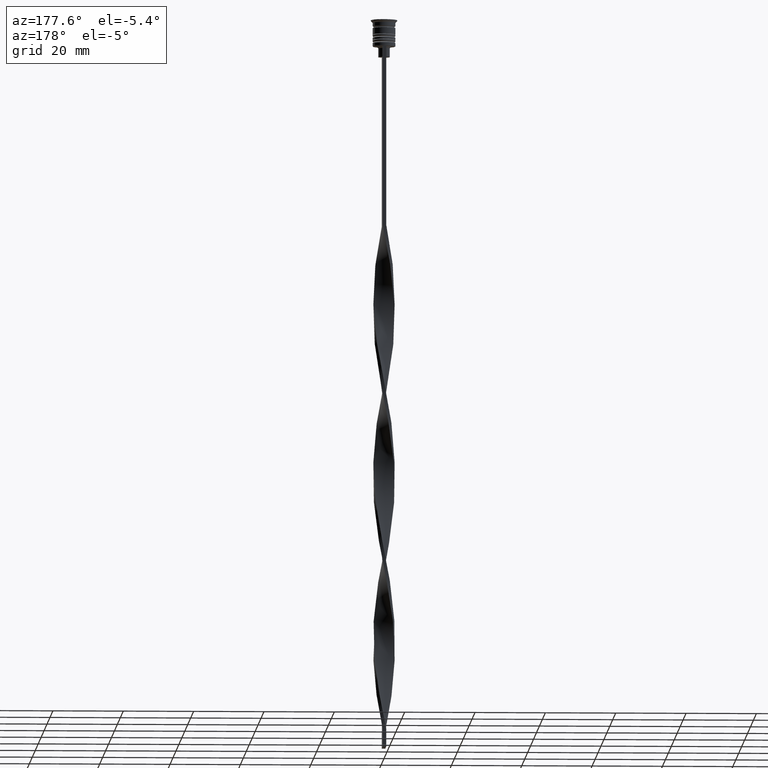
[diagram: clean part render]
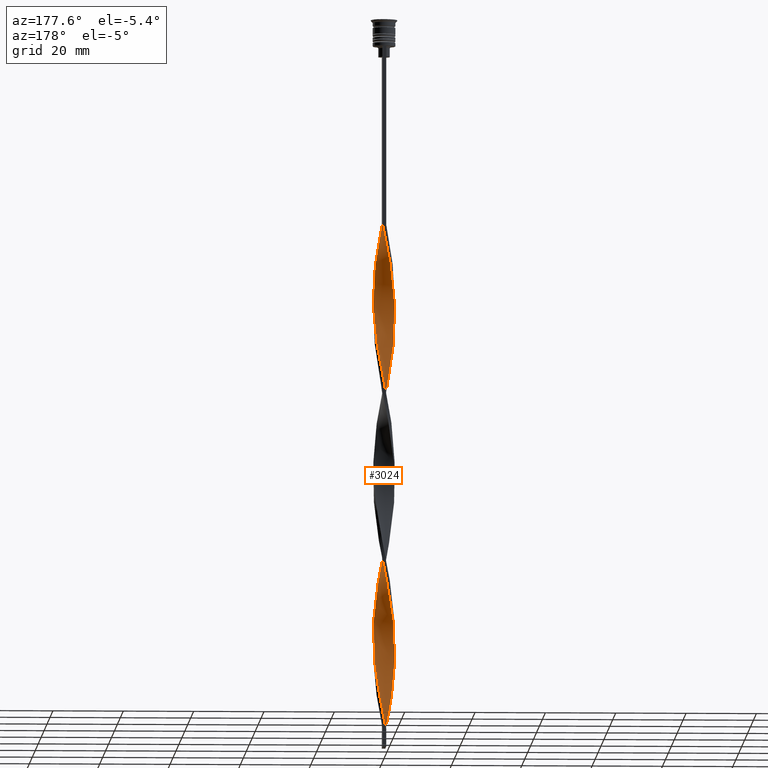
[diagram: same view with one face highlighted and labeled with its STEP entity id]
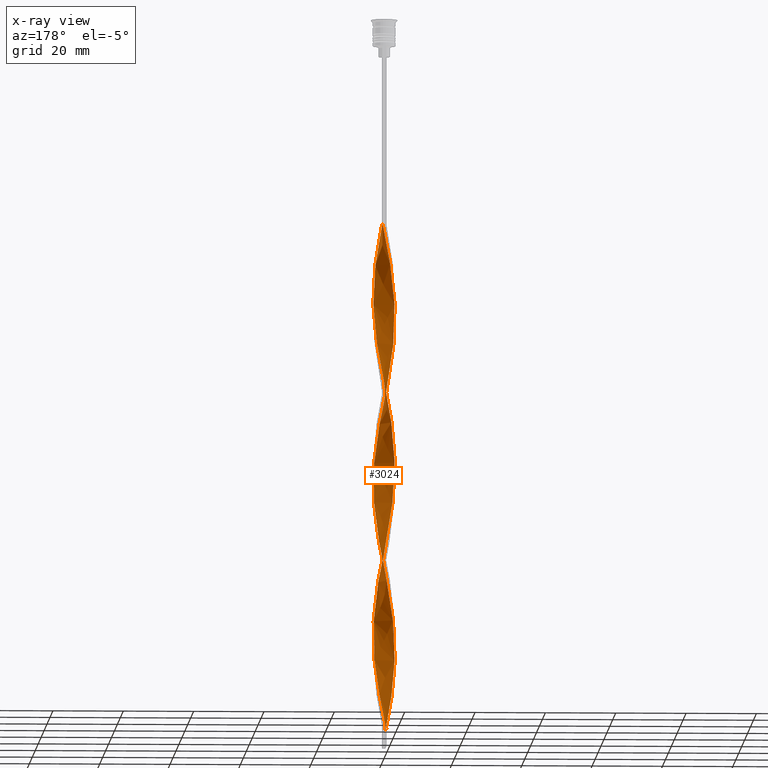
[diagram: x-ray of the same camera — body ghosted, the highlighted face saturated]
A machine part, auxiliary view. The second image highlights one B-rep face of the part: STEP entity #3024.
The next image is the same camera in x-ray: the body ghosted, the highlighted face saturated — about 0% of this face is hidden behind the body in this view.
In plain terms, the highlighted face is a freeform B-spline surface patch.
Its self-contained STEP definition (entity closure, byte-faithful):
#1 = CARTESIAN_POINT ( 'NONE',  ( -0.05976200360776023901, 3.040794057959990582, -157.3235294117646959 ) ) ;
#2 = CARTESIAN_POINT ( 'NONE',  ( 1.307479267857234451, -2.760420903407855509, -158.7352941176470438 ) ) ;
#4 = CARTESIAN_POINT ( 'NONE',  ( -3.022308424554498885, 0.3400761486298399805, -126.2647058823529420 ) ) ;
#11 = CARTESIAN_POINT ( 'NONE',  ( 2.908359051953456120, 0.8896334216520844773, -137.5588235294117680 ) ) ;
#16 = CARTESIAN_POINT ( 'NONE',  ( -2.628006467404950364, 1.556601299988307430, -172.8529411764705799 ) ) ;
#20 = CARTESIAN_POINT ( 'NONE',  ( -1.888233802353293855, -2.400832919529793941, -141.7941176470587834 ) ) ;
#36 = CARTESIAN_POINT ( 'NONE',  ( -2.628006467404950364, 1.556601299988307430, -76.85294117647060830 ) ) ;
#42 = CARTESIAN_POINT ( 'NONE',  ( -2.564815624776293213, -1.658658015008195319, -189.7941176470588118 ) ) ;
#43 = CARTESIAN_POINT ( 'NONE',  ( -1.042735103291661192, 2.857044540143419908, -109.3235294117646959 ) ) ;
#54 = CARTESIAN_POINT ( 'NONE',  ( -0.3415330684894309909, 3.035256292798965916, -158.7352941176470154 ) ) ;
#58 = CARTESIAN_POINT ( 'NONE',  ( -2.908359051953456120, -0.8896334216520835891, -185.5588235294117396 ) ) ;
#61 = CARTESIAN_POINT ( 'NONE',  ( 2.564815624776293213, -1.658658015008195319, -167.2058823529411882 ) ) ;
#72 = CARTESIAN_POINT ( 'NONE',  ( -2.908359051953456120, -0.8896334216520835891, -89.55882352941175384 ) ) ;
#76 = CARTESIAN_POINT ( 'NONE',  ( -1.549961113263636614, -2.616795855119490533, -196.8529411764705515 ) ) ;
#95 = CARTESIAN_POINT ( 'NONE',  ( -0.7779909387260893761, 2.953668176878985641, -107.9117647058823621 ) ) ;
#114 = CARTESIAN_POINT ( 'NONE',  ( 2.004405056496874504, -2.287435325750164505, -66.97058823529411598 ) ) ;
#130 = CARTESIAN_POINT ( 'NONE',  ( 2.825922375284400712, -1.159132575987104063, -74.02941176470586981 ) ) ;
#135 = CARTESIAN_POINT ( 'NONE',  ( 1.888233802353294966, 2.400832919529793497, -189.7941176470588118 ) ) ;
#149 = CARTESIAN_POINT ( 'NONE',  ( -1.651582472329342188, 2.553874573485256150, -165.7941176470588118 ) ) ;
#156 = CARTESIAN_POINT ( 'NONE',  ( 0.05976200360776034309, 3.040794057959990582, -199.6764705882352757 ) ) ;
#211 = CARTESIAN_POINT ( 'NONE',  ( 2.990795728622512417, -0.6201342673170637809, -76.85294117647059409 ) ) ;
#213 = CARTESIAN_POINT ( 'NONE',  ( 1.888233802353294966, 2.400832919529793497, -93.79411764705881183 ) ) ;
#222 = CARTESIAN_POINT ( 'NONE',  ( -2.869284401559882625, 1.047202283617009400, -79.67647058823528994 ) ) ;
#229 = CARTESIAN_POINT ( 'NONE',  ( -1.307479267857234673, 2.760420903407855509, -110.7352941176470438 ) ) ;
#238 = CARTESIAN_POINT ( 'NONE',  ( -2.695369000030346740, -1.408895295497649247, -92.38235294117646390 ) ) ;
#244 = CARTESIAN_POINT ( 'NONE',  ( 2.004405056496874504, -2.287435325750164505, -162.9705882352940876 ) ) ;
#249 = CARTESIAN_POINT ( 'NONE',  ( -1.888233802353294966, 2.400832919529793497, -71.20588235294118817 ) ) ;
#260 = CARTESIAN_POINT ( 'NONE',  ( 2.748645434482416050, 1.301901791802658304, -182.7352941176470438 ) ) ;
#263 = CARTESIAN_POINT ( 'NONE',  ( -2.941068349153452832, -0.7746721665374217691, -131.9117647058823479 ) ) ;
#273 = CARTESIAN_POINT ( 'NONE',  ( -1.154187920767260289, 2.813867488627520785, -162.9705882352940876 ) ) ;
#276 = CARTESIAN_POINT ( 'NONE',  ( 1.307479267857235339, 2.760420903407855064, -150.2647058823528994 ) ) ;
#278 = CARTESIAN_POINT ( 'NONE',  ( -2.004405056496874504, 2.287435325750164061, -114.9705882352941018 ) ) ;
#280 = CARTESIAN_POINT ( 'NONE',  ( -3.053821120486486684, 0.06001802994261361962, -127.6764705882352615 ) ) ;
#288 = CARTESIAN_POINT ( 'NONE',  ( 3.022308424554498441, 0.3400761486298388703, -134.7352941176470722 ) ) ;
#292 = CARTESIAN_POINT ( 'NONE',  ( -1.651582472329342188, 2.553874573485256150, -165.7941176470588118 ) ) ;
#294 = CARTESIAN_POINT ( 'NONE',  ( -2.990795728622512417, 0.6201342673170635589, -124.8529411764705799 ) ) ;
#304 = CARTESIAN_POINT ( 'NONE',  ( -2.941068349153452388, 0.7746721665374231014, -81.08823529411763786 ) ) ;
#310 = CARTESIAN_POINT ( 'NONE',  ( -0.6174888838592811346, 2.978037521306644120, -160.1470588235293917 ) ) ;
#315 = CARTESIAN_POINT ( 'NONE',  ( -2.941068349153452832, -0.7746721665374217691, -131.9117647058823479 ) ) ;
#333 = CARTESIAN_POINT ( 'NONE',  ( 1.549961113263636836, 2.616795855119490533, -148.8529411764705799 ) ) ;
#338 = CARTESIAN_POINT ( 'NONE',  ( 1.888233802353294966, -2.400832919529793497, -119.2058823529411598 ) ) ;
#340 = CARTESIAN_POINT ( 'NONE',  ( -0.7779909387260893761, 2.953668176878985641, -107.9117647058823621 ) ) ;
#351 = CARTESIAN_POINT ( 'NONE',  ( -0.7779909387260889320, -2.953668176878986973, -105.0882352941176521 ) ) ;
#354 = CARTESIAN_POINT ( 'NONE',  ( 1.414931142305389411, -2.706916227440719691, -116.3823529411764781 ) ) ;
#367 = CARTESIAN_POINT ( 'NONE',  ( 1.154187920767260289, 2.813867488627520785, -98.02941176470588402 ) ) ;
#388 = CARTESIAN_POINT ( 'NONE',  ( -1.549961113263636614, -2.616795855119490533, -196.8529411764705515 ) ) ;
#404 = CARTESIAN_POINT ( 'NONE',  ( 2.390591389550001278, -1.880178929838698831, -69.79411764705881183 ) ) ;
#421 = CARTESIAN_POINT ( 'NONE',  ( 3.033336708616754862, 0.2210620097576110610, -81.08823529411763786 ) ) ;
#446 = DIRECTION ( 'NONE',  ( 0.000000000000000000, 1.000000000000000000, 0.000000000000000000 ) ) ;
#451 = CARTESIAN_POINT ( 'NONE',  ( 1.042735103291661858, -2.857044540143419908, -61.32352941176470296 ) ) ;
#457 = ORIENTED_EDGE ( 'NONE', *, *, #1975, .F. ) ;
#483 = CARTESIAN_POINT ( 'NONE',  ( 0.7779909387260891540, -2.953668176878985641, -59.91176470588236214 ) ) ;
#485 = CARTESIAN_POINT ( 'NONE',  ( 2.462620696176918145, 1.784796713007145597, -89.55882352941175384 ) ) ;
#497 = CARTESIAN_POINT ( 'NONE',  ( -2.390591389550001722, -1.880178929838698387, -95.20588235294117396 ) ) ;
#503 = CARTESIAN_POINT ( 'NONE',  ( 0.3415330684894316571, 3.035256292798965916, -198.2647058823529562 ) ) ;
#509 = CARTESIAN_POINT ( 'NONE',  ( 0.4999999999999998890, 3.000000000000000000, -58.50000000000000000 ) ) ;
#514 = CARTESIAN_POINT ( 'NONE',  ( -2.297234924948886370, 2.012992126025985318, -74.02941176470586981 ) ) ;
#516 = CARTESIAN_POINT ( 'NONE',  ( 2.825922375284400712, -1.159132575987103841, -74.02941176470586981 ) ) ;
#518 = CARTESIAN_POINT ( 'NONE',  ( 1.549961113263636614, -2.616795855119490533, -160.1470588235293917 ) ) ;
#523 = CARTESIAN_POINT ( 'NONE',  ( -1.154187920767260289, 2.813867488627520785, -66.97058823529411598 ) ) ;
#526 = CARTESIAN_POINT ( 'NONE',  ( -2.004405056496874504, -2.287435325750164505, -98.02941176470588402 ) ) ;
#528 = CARTESIAN_POINT ( 'NONE',  ( -3.053821120486486684, 0.06001802994261361268, -127.6764705882352757 ) ) ;
#532 = CARTESIAN_POINT ( 'NONE',  ( -1.549961113263637058, 2.616795855119490533, -112.1470588235294059 ) ) ;
#539 = CARTESIAN_POINT ( 'NONE',  ( 2.628006467404950364, -1.556601299988307430, -124.8529411764705799 ) ) ;
#548 = CARTESIAN_POINT ( 'NONE',  ( 0.8934446992291316114, 2.920818749814321880, -99.44117647058823195 ) ) ;
#550 = CARTESIAN_POINT ( 'NONE',  ( -2.695369000030346296, 1.408895295497650135, -120.6176470588235219 ) ) ;
#558 = CARTESIAN_POINT ( 'NONE',  ( -0.5000000000000002220, -3.000000000000000000, -106.4999999999999858 ) ) ;
#562 = CARTESIAN_POINT ( 'NONE',  ( -0.7779909387260889320, -2.953668176878986529, -201.0882352941176237 ) ) ;
#565 = CARTESIAN_POINT ( 'NONE',  ( -1.549961113263637058, 2.616795855119490533, -112.1470588235294059 ) ) ;
#568 = CARTESIAN_POINT ( 'NONE',  ( 2.628006467404950364, 1.556601299988306986, -184.1470588235293917 ) ) ;
#578 = CARTESIAN_POINT ( 'NONE',  ( 2.825922375284400712, 1.159132575987104063, -138.9705882352941160 ) ) ;
#583 = CARTESIAN_POINT ( 'NONE',  ( -3.033336708616754418, 0.2210620097576115606, -179.9117647058823195 ) ) ;
#585 = CARTESIAN_POINT ( 'NONE',  ( 3.033336708616754862, 0.2210620097576110610, -177.0882352941176237 ) ) ;
#595 = CARTESIAN_POINT ( 'NONE',  ( 2.990795728622511529, 0.6201342673170625597, -136.1470588235294201 ) ) ;
#600 = CARTESIAN_POINT ( 'NONE',  ( -3.053821120486486240, -0.06001802994261491719, -181.3235294117646959 ) ) ;
#603 = CARTESIAN_POINT ( 'NONE',  ( 2.869284401559882625, 1.047202283617009400, -181.3235294117646959 ) ) ;
#620 = CARTESIAN_POINT ( 'NONE',  ( -3.022308424554498441, -0.3400761486298393144, -86.73529411764704378 ) ) ;
#625 = CARTESIAN_POINT ( 'NONE',  ( -1.792442958670039443, -2.473170806831126889, -195.4411764705882604 ) ) ;
#639 = CARTESIAN_POINT ( 'NONE',  ( -0.2220090612739111235, 3.046331823121015248, -105.0882352941176521 ) ) ;
#644 = CARTESIAN_POINT ( 'NONE',  ( -0.8934446992291310563, 2.920818749814322324, -161.5588235294117680 ) ) ;
#658 = CARTESIAN_POINT ( 'NONE',  ( -2.748645434482416050, 1.301901791802657860, -174.2647058823529278 ) ) ;
#679 = CARTESIAN_POINT ( 'NONE',  ( -2.092734363651090224, 2.206912522777888963, -168.6176470588235077 ) ) ;
#695 = CARTESIAN_POINT ( 'NONE',  ( 2.748645434482416050, 1.301901791802658304, -86.73529411764704378 ) ) ;
#759 = CARTESIAN_POINT ( 'NONE',  ( 0.6174888838592815787, -2.978037521306644120, -112.1470588235294059 ) ) ;
#764 = CARTESIAN_POINT ( 'NONE',  ( -3.053821120486486240, -0.06001802994261491719, -181.3235294117646674 ) ) ;
#771 = CARTESIAN_POINT ( 'NONE',  ( 0.4999999999999998890, 3.000000000000000000, -58.50000000000000000 ) ) ;
#777 = CARTESIAN_POINT ( 'NONE',  ( 0.8934446992291316114, 2.920818749814321880, -195.4411764705882604 ) ) ;
#792 = CARTESIAN_POINT ( 'NONE',  ( -2.628006467404950364, 1.556601299988307430, -76.85294117647059409 ) ) ;
#796 = CARTESIAN_POINT ( 'NONE',  ( 3.053821120486486240, -0.06001802994261470209, -79.67647058823528994 ) ) ;
#798 = CARTESIAN_POINT ( 'NONE',  ( 1.042735103291661858, -2.857044540143419908, -157.3235294117646959 ) ) ;
#810 = CARTESIAN_POINT ( 'NONE',  ( -3.033336708616754418, 0.2210620097576115606, -83.91176470588234793 ) ) ;
#814 = CARTESIAN_POINT ( 'NONE',  ( -3.012852296747023484, -0.5021420494578365812, -130.5000000000000000 ) ) ;
#819 = CARTESIAN_POINT ( 'NONE',  ( 2.297234924948886370, -2.012992126025985762, -122.0294117647058982 ) ) ;
#823 = CARTESIAN_POINT ( 'NONE',  ( -0.05976200360776023901, 3.040794057959990582, -61.32352941176470296 ) ) ;
#827 = CARTESIAN_POINT ( 'NONE',  ( -0.8934446992291305012, -2.920818749814322324, -147.4411764705882320 ) ) ;
#829 = CARTESIAN_POINT ( 'NONE',  ( 2.748645434482416050, 1.301901791802658304, -182.7352941176470438 ) ) ;
#835 = CARTESIAN_POINT ( 'NONE',  ( -3.033336708616754418, 0.2210620097576115606, -83.91176470588234793 ) ) ;
#840 = CARTESIAN_POINT ( 'NONE',  ( 2.004405056496875837, 2.287435325750163617, -146.0294117647058556 ) ) ;
#845 = CARTESIAN_POINT ( 'NONE',  ( 2.004405056496874504, -2.287435325750164505, -162.9705882352940876 ) ) ;
#850 = CARTESIAN_POINT ( 'NONE',  ( 3.033336708616754862, 0.2210620097576110610, -177.0882352941176237 ) ) ;
#858 = CARTESIAN_POINT ( 'NONE',  ( -2.390591389550001722, -1.880178929838698387, -95.20588235294117396 ) ) ;
#862 = CARTESIAN_POINT ( 'NONE',  ( -1.154187920767260289, 2.813867488627520785, -162.9705882352940876 ) ) ;
#865 = CARTESIAN_POINT ( 'NONE',  ( 2.825922375284400712, -1.159132575987103841, -170.0294117647058840 ) ) ;
#875 = ORIENTED_EDGE ( 'NONE', *, *, #2669, .F. ) ;
#877 = CARTESIAN_POINT ( 'NONE',  ( 3.053821120486486240, 0.06001802994261524332, -133.3235294117647243 ) ) ;
#881 = CARTESIAN_POINT ( 'NONE',  ( 0.2220090612739105962, 3.046331823121015248, -155.9117647058823763 ) ) ;
#883 = CARTESIAN_POINT ( 'NONE',  ( 2.908359051953456564, -0.8896334216520838112, -171.4411764705882035 ) ) ;
#894 = CARTESIAN_POINT ( 'NONE',  ( 1.042735103291660970, 2.857044540143419908, -151.6764705882353041 ) ) ;
#898 = CARTESIAN_POINT ( 'NONE',  ( -2.004405056496874504, -2.287435325750164505, -194.0294117647058556 ) ) ;
#916 = CARTESIAN_POINT ( 'NONE',  ( 0.3415330684894316571, 3.035256292798965916, -102.2647058823529420 ) ) ;
#920 = CARTESIAN_POINT ( 'NONE',  ( 1.042735103291660970, 2.857044540143419908, -151.6764705882353041 ) ) ;
#934 = CARTESIAN_POINT ( 'NONE',  ( -2.869284401559882625, 1.047202283617009400, -175.6764705882353041 ) ) ;
#952 = CARTESIAN_POINT ( 'NONE',  ( -2.695369000030346740, -1.408895295497649247, -188.3823529411764355 ) ) ;
#958 = CARTESIAN_POINT ( 'NONE',  ( 0.3415330684894316016, 3.035256292798965916, -198.2647058823529562 ) ) ;
#975 = CARTESIAN_POINT ( 'NONE',  ( -2.941068349153452388, 0.7746721665374231014, -177.0882352941176237 ) ) ;
#979 = CARTESIAN_POINT ( 'NONE',  ( -0.4999999999999997780, 1.000000000000000000, -202.4999999999999716 ) ) ;
#985 = B_SPLINE_CURVE_WITH_KNOTS ( 'NONE', 3,
 ( #1246, #3505, #979, #2109 ),
 .UNSPECIFIED., .F., .F.,
 ( 4, 4 ),
 ( 0.000000000000000000, 1.000000000000000000 ),
 .UNSPECIFIED. ) ;
#1015 = CARTESIAN_POINT ( 'NONE',  ( 2.908359051953456564, -0.8896334216520838112, -75.44117647058823195 ) ) ;
#1031 = CARTESIAN_POINT ( 'NONE',  ( -2.462620696176917701, 1.784796713007145819, -75.44117647058823195 ) ) ;
#1035 = CARTESIAN_POINT ( 'NONE',  ( 1.307479267857234451, -2.760420903407855509, -62.73529411764705799 ) ) ;
#1037 = CARTESIAN_POINT ( 'NONE',  ( -3.012852296747023484, 0.5021420494578373583, -178.4999999999999716 ) ) ;
#1045 = CARTESIAN_POINT ( 'NONE',  ( -2.990795728622512417, -0.6201342673170633368, -88.14705882352940591 ) ) ;
#1048 = CARTESIAN_POINT ( 'NONE',  ( 2.695369000030346296, -1.408895295497649691, -72.61764705882352189 ) ) ;
#1052 = CARTESIAN_POINT ( 'NONE',  ( 1.307479267857234673, -2.760420903407855509, -158.7352941176470154 ) ) ;
#1064 = CARTESIAN_POINT ( 'NONE',  ( -1.154187920767261843, -2.813867488627519897, -146.0294117647058556 ) ) ;
#1080 = CARTESIAN_POINT ( 'NONE',  ( 0.4999999999999998890, 3.000000000000000000, -58.50000000000000000 ) ) ;
#1083 = CARTESIAN_POINT ( 'NONE',  ( -0.6174888838592813567, -2.978037521306644120, -148.8529411764705799 ) ) ;
#1095 = CARTESIAN_POINT ( 'NONE',  ( -1.154187920767260289, 2.813867488627520785, -66.97058823529411598 ) ) ;
#1097 = CARTESIAN_POINT ( 'NONE',  ( 0.05976200360776034309, 3.040794057959990582, -103.6764705882352899 ) ) ;
#1100 = CARTESIAN_POINT ( 'NONE',  ( 0.7779909387260891540, -2.953668176878985641, -155.9117647058824048 ) ) ;
#1106 = CARTESIAN_POINT ( 'NONE',  ( -2.869284401559882625, 1.047202283617009400, -79.67647058823528994 ) ) ;
#1111 = CARTESIAN_POINT ( 'NONE',  ( -2.297234924948886370, 2.012992126025985318, -170.0294117647058840 ) ) ;
#1113 = CARTESIAN_POINT ( 'NONE',  ( -2.390591389550001278, 1.880178929838698831, -117.7941176470588118 ) ) ;
#1115 = CARTESIAN_POINT ( 'NONE',  ( 0.4999999999999998890, -3.000000000000000000, -154.4999999999999716 ) ) ;
#1122 = CARTESIAN_POINT ( 'NONE',  ( -2.748645434482416050, 1.301901791802657860, -78.26470588235292780 ) ) ;
#1127 = CARTESIAN_POINT ( 'NONE',  ( 2.462620696176918589, -1.784796713007145375, -123.4411764705882177 ) ) ;
#1132 = CARTESIAN_POINT ( 'NONE',  ( 1.042735103291661858, -2.857044540143419908, -157.3235294117646959 ) ) ;
#1147 = CARTESIAN_POINT ( 'NONE',  ( 0.8934446992291308343, -2.920818749814322324, -113.5588235294117538 ) ) ;
#1152 = CARTESIAN_POINT ( 'NONE',  ( 1.651582472329342188, -2.553874573485256150, -117.7941176470588118 ) ) ;
#1154 = CARTESIAN_POINT ( 'NONE',  ( -2.297234924948886370, -2.012992126025985318, -138.9705882352941160 ) ) ;
#1165 = CARTESIAN_POINT ( 'NONE',  ( -0.6174888838592811346, 2.978037521306644120, -160.1470588235293917 ) ) ;
#1169 = CARTESIAN_POINT ( 'NONE',  ( -2.390591389550001722, -1.880178929838698387, -191.2058823529411598 ) ) ;
#1170 = CARTESIAN_POINT ( 'NONE',  ( -2.869284401559882625, -1.047202283617009844, -133.3235294117646959 ) ) ;
#1173 = CARTESIAN_POINT ( 'NONE',  ( -0.4999999999999995559, 3.000000000000000000, -202.4999999999999716 ) ) ;
#1182 = CARTESIAN_POINT ( 'NONE',  ( -2.695369000030346740, -1.408895295497649247, -92.38235294117646390 ) ) ;
#1186 = CARTESIAN_POINT ( 'NONE',  ( 3.012852296747023484, -0.5021420494578376914, -130.5000000000000000 ) ) ;
#1205 = CARTESIAN_POINT ( 'NONE',  ( -1.042735103291661192, 2.857044540143419908, -109.3235294117646959 ) ) ;
#1223 = CARTESIAN_POINT ( 'NONE',  ( 1.549961113263636614, -2.616795855119490533, -64.14705882352940591 ) ) ;
#1241 = CARTESIAN_POINT ( 'NONE',  ( -2.990795728622511973, -0.6201342673170633368, -184.1470588235293917 ) ) ;
#1244 =( BOUNDED_CURVE ( )  B_SPLINE_CURVE ( 2, ( #1080, #1605, #823, #2755, #1639, #3338, #1095, #1385, #2510, #1904, #1307, #514, #1031, #792, #3079, #222, #1332, #2770, #810, #3578, #1941, #1045, #2162, #3065, #238, #2441, #497, #3015, #526, #1347, #3562, #1653, #3287, #3316, #3629, #2475, #2233, #3352, #759, #1889, #3593, #354, #1152, #338, #3101, #2029, #1127, #1416, #1457, #1476, #1751, #1186, #2290, #1730, #2883, #3407, #1435, #2842, #2864, #1690, #2009, #2585, #840, #2808, #2823, #276, #920, #3174, #2543, #881, #1, #2308, #310, #644, #862, #3137, #292, #1992, #1976, #1111, #2049, #16, #3119, #2270, #3389, #2567, #583, #600, #3158, #2605, #58, #1711, #2527, #42, #1169, #3426, #898, #625, #76, #2331, #3451, #562, #1401 ),
 .UNSPECIFIED., .F., .T. ) 
 B_SPLINE_CURVE_WITH_KNOTS ( ( 3, 2, 2, 2, 2, 2, 2, 2, 2, 2, 2, 2, 2, 2, 2, 2, 2, 2, 2, 2, 2, 2, 2, 2, 2, 2, 2, 2, 2, 2, 2, 2, 2, 2, 2, 2, 2, 2, 2, 2, 2, 2, 2, 2, 2, 2, 2, 2, 2, 2, 2, 3 ),
 ( 0.000000000000000000, 0.01470588235294117453, 0.02941176470588234906, 0.04411764705882353227, 0.05882352941176469813, 0.07352941176470588480, 0.08823529411764706454, 0.1029411764705882443, 0.1176470588235293963, 0.1323529411764705899, 0.1470588235294117696, 0.1617647058823529493, 0.1764705882352941291, 0.1911764705882352811, 0.2058823529411764885, 0.2205882352941176405, 0.2352941176470587925, 0.2500000000000000000, 0.2647058823529411797, 0.2794117647058823595, 0.2941176470588235392, 0.3088235294117647189, 0.3235294117647058987, 0.3382352941176470229, 0.3529411764705882582, 0.3676470588235294379, 0.3823529411764705621, 0.3970588235294117418, 0.4117647058823529771, 0.4264705882352941013, 0.4411764705882352811, 0.4558823529411764608, 0.4705882352941175850, 0.4852941176470588203, 0.5000000000000000000, 0.5147058823529411242, 0.5294117647058823595, 0.5441176470588234837, 0.5588235294117647189, 0.5735294117647058432, 0.5882352941176470784, 0.6029411764705882026, 0.6176470588235294379, 0.6323529411764705621, 0.6470588235294117974, 0.6617647058823529216, 0.6764705882352940458, 0.6911764705882351700, 0.7058823529411765163, 0.7205882352941176405, 0.7352941176470588758, 0.7500000000000000000 ),
 .UNSPECIFIED. ) 
 CURVE ( )  GEOMETRIC_REPRESENTATION_ITEM ( )  RATIONAL_B_SPLINE_CURVE ( ( 1.000000000000000000, 0.9957341762950344677, 1.000000000000000000, 0.9957341762950344677, 1.000000000000000000, 0.9957341762950344677, 1.000000000000000000, 0.9957341762950344677, 1.000000000000000000, 0.9957341762950344677, 1.000000000000000000, 0.9957341762950344677, 1.000000000000000000, 0.9957341762950344677, 1.000000000000000000, 0.9957341762950344677, 1.000000000000000000, 0.9957341762950344677, 1.000000000000000000, 0.9957341762950344677, 1.000000000000000000, 0.9957341762950344677, 1.000000000000000000, 0.9957341762950344677, 1.000000000000000000, 0.9957341762950344677, 1.000000000000000000, 0.9957341762950344677, 1.000000000000000000, 0.9957341762950344677, 1.000000000000000000, 0.9957341762950344677, 1.000000000000000000, 0.9957341762950344677, 1.000000000000000000, 0.9957341762950344677, 1.000000000000000000, 0.9957341762950344677, 1.000000000000000000, 0.9957341762950344677, 1.000000000000000000, 0.9957341762950344677, 1.000000000000000000, 0.9957341762950344677, 1.000000000000000000, 0.9957341762950344677, 1.000000000000000000, 0.9957341762950344677, 1.000000000000000000, 0.9957341762950344677, 1.000000000000000000, 0.9957341762950344677, 1.000000000000000000, 0.9957341762950344677, 1.000000000000000000, 0.9957341762950344677, 1.000000000000000000, 0.9957341762950344677, 1.000000000000000000, 0.9957341762950344677, 1.000000000000000000, 0.9957341762950344677, 1.000000000000000000, 0.9957341762950344677, 1.000000000000000000, 0.9957341762950344677, 1.000000000000000000, 0.9957341762950344677, 1.000000000000000000, 0.9957341762950344677, 1.000000000000000000, 0.9957341762950344677, 1.000000000000000000, 0.9957341762950344677, 1.000000000000000000, 0.9957341762950344677, 1.000000000000000000, 0.9957341762950344677, 1.000000000000000000, 0.9957341762950344677, 1.000000000000000000, 0.9957341762950344677, 1.000000000000000000, 0.9957341762950344677, 1.000000000000000000, 0.9957341762950344677, 1.000000000000000000, 0.9957341762950344677, 1.000000000000000000, 0.9957341762950344677, 1.000000000000000000, 0.9957341762950344677, 1.000000000000000000, 0.9957341762950344677, 1.000000000000000000, 0.9957341762950344677, 1.000000000000000000, 0.9957341762950344677, 1.000000000000000000, 0.9957341762950344677, 1.000000000000000000, 0.9957341762950344677, 1.000000000000000000 ) ) 
 REPRESENTATION_ITEM ( '' )  );
#1246 = CARTESIAN_POINT ( 'NONE',  ( -0.5000000000000002220, -3.000000000000000000, -202.4999999999999716 ) ) ;
#1247 = CARTESIAN_POINT ( 'NONE',  ( 0.6174888838592811346, 2.978037521306644120, -196.8529411764705515 ) ) ;
#1267 = CARTESIAN_POINT ( 'NONE',  ( -3.033336708616754418, 0.2210620097576115606, -179.9117647058823195 ) ) ;
#1303 = CARTESIAN_POINT ( 'NONE',  ( -0.05976200360776023901, 3.040794057959990582, -61.32352941176470296 ) ) ;
#1307 = CARTESIAN_POINT ( 'NONE',  ( -2.092734363651090224, 2.206912522777888963, -72.61764705882352189 ) ) ;
#1310 = CARTESIAN_POINT ( 'NONE',  ( 1.792442958670039221, -2.473170806831127333, -65.55882352941178226 ) ) ;
#1332 = CARTESIAN_POINT ( 'NONE',  ( -2.941068349153452388, 0.7746721665374231014, -81.08823529411763786 ) ) ;
#1335 = CARTESIAN_POINT ( 'NONE',  ( 1.549961113263636614, -2.616795855119490533, -64.14705882352940591 ) ) ;
#1337 = CARTESIAN_POINT ( 'NONE',  ( 2.092734363651090668, 2.206912522777888963, -188.3823529411764355 ) ) ;
#1347 = CARTESIAN_POINT ( 'NONE',  ( -1.792442958670039443, -2.473170806831126889, -99.44117647058823195 ) ) ;
#1355 = CARTESIAN_POINT ( 'NONE',  ( -2.297234924948886814, -2.012992126025985318, -138.9705882352941160 ) ) ;
#1366 =( BOUNDED_SURFACE ( )  B_SPLINE_SURFACE ( 1, 2, ( 
 ( #509, #1636, #1303, #2214, #1937, #3062, #523, #2437, #1650, #249, #1379, #2507, #2524, #36, #1122, #1106, #304, #2538, #835, #1950, #620, #3385, #72, #2244, #1182, #3348, #858, #1969, #1722, #3152, #1989, #3098, #1686, #351, #558, #3134, #3363, #1472, #2262, #1147, #2859, #1747, #2304, #3422, #1411, #819, #2559, #539, #1428, #2600, #3114, #2819, #2286, #877, #288, #595, #11, #578, #2879, #1706, #2835, #1667, #3403, #2005, #333, #3641, #894, #2021, #1453, #2581, #3076, #54, #1165, #2805, #273, #1398, #149, #3567, #679, #3500, #2620, #1546, #658, #934, #975, #1037, #1267, #764, #1811, #1241, #2448, #2942, #952, #2364, #2345, #2660, #3482, #3463, #388, #2062, #2918, #2080, #3188 ),
 ( #1785, #2045, #1514, #2643, #1223, #3206, #114, #2958, #404, #1529, #2897, #130, #2168, #3020, #3294, #1894, #421, #2381, #2104, #3228, #695, #1828, #485, #1610, #2741, #213, #2325, #2676, #367, #3442, #1489, #916, #3169, #639, #1766, #95, #1205, #229, #532, #2812, #2531, #3342, #2515, #1630, #550, #3325, #3598, #3634, #4, #280, #3373, #814, #263, #1404, #1945, #3618, #1368, #1355, #1658, #2494, #2481, #3056, #1064, #1931, #1083, #2202, #3071, #1678, #1115, #1100, #798, #1052, #518, #1644, #244, #2222, #2776, #1959, #2791, #1390, #1909, #2237, #2253, #1980, #850, #3107, #3087, #3357, #829, #568, #1696, #2828, #1337, #2466, #3585, #2183, #3307, #777, #3039, #503, #2760, #3142, #1173 ) ),
 .UNSPECIFIED., .F., .F., .F. ) 
 B_SPLINE_SURFACE_WITH_KNOTS ( ( 2, 2 ),
 ( 3, 2, 2, 2, 2, 2, 2, 2, 2, 2, 2, 2, 2, 2, 2, 2, 2, 2, 2, 2, 2, 2, 2, 2, 2, 2, 2, 2, 2, 2, 2, 2, 2, 2, 2, 2, 2, 2, 2, 2, 2, 2, 2, 2, 2, 2, 2, 2, 2, 2, 2, 3 ),
 ( 0.000000000000000000, 1.000000000000000000 ),
 ( 0.000000000000000000, 0.01470588235294117627, 0.02941176470588235253, 0.04411764705882353227, 0.05882352941176470507, 0.07352941176470588480, 0.08823529411764706454, 0.1029411764705882304, 0.1176470588235294101, 0.1323529411764705899, 0.1470588235294117696, 0.1617647058823529493, 0.1764705882352941291, 0.1911764705882352811, 0.2058823529411764608, 0.2205882352941176405, 0.2352941176470588203, 0.2500000000000000000, 0.2647058823529411797, 0.2794117647058823595, 0.2941176470588235392, 0.3088235294117647189, 0.3235294117647058987, 0.3382352941176470784, 0.3529411764705882582, 0.3676470588235294379, 0.3823529411764705621, 0.3970588235294117418, 0.4117647058823529216, 0.4264705882352941013, 0.4411764705882352811, 0.4558823529411764608, 0.4705882352941176405, 0.4852941176470588203, 0.5000000000000000000, 0.5147058823529411242, 0.5294117647058823595, 0.5441176470588234837, 0.5588235294117647189, 0.5735294117647058432, 0.5882352941176470784, 0.6029411764705882026, 0.6176470588235294379, 0.6323529411764705621, 0.6470588235294117974, 0.6617647058823529216, 0.6764705882352941568, 0.6911764705882352811, 0.7058823529411765163, 0.7205882352941176405, 0.7352941176470588758, 0.7500000000000000000 ),
 .UNSPECIFIED. ) 
 GEOMETRIC_REPRESENTATION_ITEM ( )  RATIONAL_B_SPLINE_SURFACE ( (
 ( 1.000000000000000000, 0.9957341762950344677, 1.000000000000000000, 0.9957341762950344677, 1.000000000000000000, 0.9957341762950344677, 1.000000000000000000, 0.9957341762950344677, 1.000000000000000000, 0.9957341762950344677, 1.000000000000000000, 0.9957341762950344677, 1.000000000000000000, 0.9957341762950344677, 1.000000000000000000, 0.9957341762950344677, 1.000000000000000000, 0.9957341762950344677, 1.000000000000000000, 0.9957341762950344677, 1.000000000000000000, 0.9957341762950344677, 1.000000000000000000, 0.9957341762950344677, 1.000000000000000000, 0.9957341762950344677, 1.000000000000000000, 0.9957341762950344677, 1.000000000000000000, 0.9957341762950344677, 1.000000000000000000, 0.9957341762950344677, 1.000000000000000000, 0.9957341762950344677, 1.000000000000000000, 0.9957341762950344677, 1.000000000000000000, 0.9957341762950344677, 1.000000000000000000, 0.9957341762950344677, 1.000000000000000000, 0.9957341762950344677, 1.000000000000000000, 0.9957341762950344677, 1.000000000000000000, 0.9957341762950344677, 1.000000000000000000, 0.9957341762950344677, 1.000000000000000000, 0.9957341762950344677, 1.000000000000000000, 0.9957341762950344677, 1.000000000000000000, 0.9957341762950344677, 1.000000000000000000, 0.9957341762950344677, 1.000000000000000000, 0.9957341762950344677, 1.000000000000000000, 0.9957341762950344677, 1.000000000000000000, 0.9957341762950344677, 1.000000000000000000, 0.9957341762950344677, 1.000000000000000000, 0.9957341762950344677, 1.000000000000000000, 0.9957341762950344677, 1.000000000000000000, 0.9957341762950344677, 1.000000000000000000, 0.9957341762950344677, 1.000000000000000000, 0.9957341762950344677, 1.000000000000000000, 0.9957341762950344677, 1.000000000000000000, 0.9957341762950344677, 1.000000000000000000, 0.9957341762950344677, 1.000000000000000000, 0.9957341762950344677, 1.000000000000000000, 0.9957341762950344677, 1.000000000000000000, 0.9957341762950344677, 1.000000000000000000, 0.9957341762950344677, 1.000000000000000000, 0.9957341762950344677, 1.000000000000000000, 0.9957341762950344677, 1.000000000000000000, 0.9957341762950344677, 1.000000000000000000, 0.9957341762950344677, 1.000000000000000000, 0.9957341762950344677, 1.000000000000000000, 0.9957341762950344677, 1.000000000000000000, 0.9957341762950344677, 1.000000000000000000),
 ( 1.000000000000000000, 0.9957341762950344677, 1.000000000000000000, 0.9957341762950344677, 1.000000000000000000, 0.9957341762950344677, 1.000000000000000000, 0.9957341762950344677, 1.000000000000000000, 0.9957341762950344677, 1.000000000000000000, 0.9957341762950344677, 1.000000000000000000, 0.9957341762950344677, 1.000000000000000000, 0.9957341762950344677, 1.000000000000000000, 0.9957341762950344677, 1.000000000000000000, 0.9957341762950344677, 1.000000000000000000, 0.9957341762950344677, 1.000000000000000000, 0.9957341762950344677, 1.000000000000000000, 0.9957341762950344677, 1.000000000000000000, 0.9957341762950344677, 1.000000000000000000, 0.9957341762950344677, 1.000000000000000000, 0.9957341762950344677, 1.000000000000000000, 0.9957341762950344677, 1.000000000000000000, 0.9957341762950344677, 1.000000000000000000, 0.9957341762950344677, 1.000000000000000000, 0.9957341762950344677, 1.000000000000000000, 0.9957341762950344677, 1.000000000000000000, 0.9957341762950344677, 1.000000000000000000, 0.9957341762950344677, 1.000000000000000000, 0.9957341762950344677, 1.000000000000000000, 0.9957341762950344677, 1.000000000000000000, 0.9957341762950344677, 1.000000000000000000, 0.9957341762950344677, 1.000000000000000000, 0.9957341762950344677, 1.000000000000000000, 0.9957341762950344677, 1.000000000000000000, 0.9957341762950344677, 1.000000000000000000, 0.9957341762950344677, 1.000000000000000000, 0.9957341762950344677, 1.000000000000000000, 0.9957341762950344677, 1.000000000000000000, 0.9957341762950344677, 1.000000000000000000, 0.9957341762950344677, 1.000000000000000000, 0.9957341762950344677, 1.000000000000000000, 0.9957341762950344677, 1.000000000000000000, 0.9957341762950344677, 1.000000000000000000, 0.9957341762950344677, 1.000000000000000000, 0.9957341762950344677, 1.000000000000000000, 0.9957341762950344677, 1.000000000000000000, 0.9957341762950344677, 1.000000000000000000, 0.9957341762950344677, 1.000000000000000000, 0.9957341762950344677, 1.000000000000000000, 0.9957341762950344677, 1.000000000000000000, 0.9957341762950344677, 1.000000000000000000, 0.9957341762950344677, 1.000000000000000000, 0.9957341762950344677, 1.000000000000000000, 0.9957341762950344677, 1.000000000000000000, 0.9957341762950344677, 1.000000000000000000, 0.9957341762950344677, 1.000000000000000000) ) ) 
 REPRESENTATION_ITEM ( '' )  SURFACE ( )  );
#1368 = CARTESIAN_POINT ( 'NONE',  ( -2.462620696176917257, -1.784796713007146485, -137.5588235294117680 ) ) ;
#1379 = CARTESIAN_POINT ( 'NONE',  ( -2.092734363651090224, 2.206912522777888963, -72.61764705882352189 ) ) ;
#1385 = CARTESIAN_POINT ( 'NONE',  ( -1.414931142305390299, 2.706916227440719247, -68.38235294117646390 ) ) ;
#1388 = CARTESIAN_POINT ( 'NONE',  ( -2.825922375284401156, 1.159132575987104730, -122.0294117647058840 ) ) ;
#1390 = CARTESIAN_POINT ( 'NONE',  ( 2.825922375284400712, -1.159132575987104063, -170.0294117647058556 ) ) ;
#1398 = CARTESIAN_POINT ( 'NONE',  ( -1.414931142305390521, 2.706916227440719247, -164.3823529411764923 ) ) ;
#1401 = CARTESIAN_POINT ( 'NONE',  ( -0.5000000000000002220, -3.000000000000000000, -202.4999999999999716 ) ) ;
#1403 = CARTESIAN_POINT ( 'NONE',  ( -2.564815624776293213, 1.658658015008194875, -119.2058823529411598 ) ) ;
#1404 = CARTESIAN_POINT ( 'NONE',  ( -2.869284401559882625, -1.047202283617009844, -133.3235294117647243 ) ) ;
#1411 = CARTESIAN_POINT ( 'NONE',  ( 2.092734363651090224, -2.206912522777889407, -120.6176470588235219 ) ) ;
#1416 = CARTESIAN_POINT ( 'NONE',  ( 2.628006467404950364, -1.556601299988307430, -124.8529411764705799 ) ) ;
#1418 = CARTESIAN_POINT ( 'NONE',  ( -2.628006467404950808, -1.556601299988306542, -136.1470588235294201 ) ) ;
#1428 = CARTESIAN_POINT ( 'NONE',  ( 2.748645434482415606, -1.301901791802658970, -126.2647058823529420 ) ) ;
#1435 = CARTESIAN_POINT ( 'NONE',  ( 2.908359051953456120, 0.8896334216520844773, -137.5588235294117680 ) ) ;
#1442 = CARTESIAN_POINT ( 'NONE',  ( 0.3415330684894316016, 3.035256292798965916, -102.2647058823529420 ) ) ;
#1453 = CARTESIAN_POINT ( 'NONE',  ( 0.4999999999999998890, 3.000000000000000000, -154.4999999999999716 ) ) ;
#1457 = CARTESIAN_POINT ( 'NONE',  ( 2.748645434482415606, -1.301901791802658970, -126.2647058823529420 ) ) ;
#1460 = CARTESIAN_POINT ( 'NONE',  ( -2.908359051953456564, 0.8896334216520830340, -123.4411764705882177 ) ) ;
#1472 = CARTESIAN_POINT ( 'NONE',  ( 0.3415330684894309909, -3.035256292798965916, -110.7352941176470438 ) ) ;
#1476 = CARTESIAN_POINT ( 'NONE',  ( 2.869284401559883069, -1.047202283617008511, -127.6764705882352757 ) ) ;
#1489 = CARTESIAN_POINT ( 'NONE',  ( 0.6174888838592811346, 2.978037521306644120, -100.8529411764705941 ) ) ;
#1514 = CARTESIAN_POINT ( 'NONE',  ( 1.042735103291661858, -2.857044540143419908, -61.32352941176470296 ) ) ;
#1529 = CARTESIAN_POINT ( 'NONE',  ( 2.564815624776293213, -1.658658015008195319, -71.20588235294118817 ) ) ;
#1546 = CARTESIAN_POINT ( 'NONE',  ( -2.628006467404950364, 1.556601299988307430, -172.8529411764705799 ) ) ;
#1576 = CARTESIAN_POINT ( 'NONE',  ( 2.564815624776293213, -1.658658015008195319, -71.20588235294118817 ) ) ;
#1579 = EDGE_CURVE ( 'NONE', #3538, #3143, #2765, .T. ) ;
#1605 = CARTESIAN_POINT ( 'NONE',  ( 0.2220090612739105962, 3.046331823121015248, -59.91176470588236214 ) ) ;
#1608 = CARTESIAN_POINT ( 'NONE',  ( 3.033336708616754862, 0.2210620097576110610, -81.08823529411763786 ) ) ;
#1610 = CARTESIAN_POINT ( 'NONE',  ( 2.297234924948886814, 2.012992126025985762, -90.97058823529413019 ) ) ;
#1630 = CARTESIAN_POINT ( 'NONE',  ( -2.564815624776293213, 1.658658015008194875, -119.2058823529411455 ) ) ;
#1636 = CARTESIAN_POINT ( 'NONE',  ( 0.2220090612739105962, 3.046331823121014803, -59.91176470588236214 ) ) ;
#1639 = CARTESIAN_POINT ( 'NONE',  ( -0.6174888838592811346, 2.978037521306644120, -64.14705882352940591 ) ) ;
#1642 = CARTESIAN_POINT ( 'NONE',  ( 2.462620696176918145, 1.784796713007145597, -89.55882352941175384 ) ) ;
#1644 = CARTESIAN_POINT ( 'NONE',  ( 1.792442958670038999, -2.473170806831126889, -161.5588235294117396 ) ) ;
#1650 = CARTESIAN_POINT ( 'NONE',  ( -1.651582472329342188, 2.553874573485256150, -69.79411764705881183 ) ) ;
#1653 = CARTESIAN_POINT ( 'NONE',  ( -1.307479267857235117, -2.760420903407855509, -102.2647058823529420 ) ) ;
#1655 = CARTESIAN_POINT ( 'NONE',  ( -3.012852296747023484, -0.5021420494578365812, -130.5000000000000000 ) ) ;
#1658 = CARTESIAN_POINT ( 'NONE',  ( -2.092734363651091112, -2.206912522777888519, -140.3823529411764639 ) ) ;
#1667 = CARTESIAN_POINT ( 'NONE',  ( 2.216367154323710675, 2.101699844669203010, -144.6176470588235361 ) ) ;
#1676 = CARTESIAN_POINT ( 'NONE',  ( 1.651582472329342632, 2.553874573485255706, -95.20588235294117396 ) ) ;
#1678 = CARTESIAN_POINT ( 'NONE',  ( 0.2220090612739107072, -3.046331823121015692, -153.0882352941176237 ) ) ;
#1686 = CARTESIAN_POINT ( 'NONE',  ( -1.042735103291662080, -2.857044540143419908, -103.6764705882352899 ) ) ;
#1690 = CARTESIAN_POINT ( 'NONE',  ( 2.564815624776292768, 1.658658015008195985, -141.7941176470587834 ) ) ;
#1693 = CARTESIAN_POINT ( 'NONE',  ( -1.414931142305390965, -2.706916227440719247, -144.6176470588235361 ) ) ;
#1696 = CARTESIAN_POINT ( 'NONE',  ( 2.462620696176918145, 1.784796713007145597, -185.5588235294117396 ) ) ;
#1706 = CARTESIAN_POINT ( 'NONE',  ( 2.564815624776292768, 1.658658015008195985, -141.7941176470588118 ) ) ;
#1711 = CARTESIAN_POINT ( 'NONE',  ( -2.825922375284400712, -1.159132575987104508, -186.9705882352941444 ) ) ;
#1713 = CARTESIAN_POINT ( 'NONE',  ( 2.216367154323709787, -2.101699844669203010, -164.3823529411764923 ) ) ;
#1722 = CARTESIAN_POINT ( 'NONE',  ( -2.004405056496874504, -2.287435325750164505, -98.02941176470588402 ) ) ;
#1730 = CARTESIAN_POINT ( 'NONE',  ( 3.053821120486486240, 0.06001802994261524332, -133.3235294117646959 ) ) ;
#1736 = CARTESIAN_POINT ( 'NONE',  ( 0.7779909387260891540, -2.953668176878985641, -155.9117647058823763 ) ) ;
#1747 = CARTESIAN_POINT ( 'NONE',  ( 1.414931142305389633, -2.706916227440719691, -116.3823529411764781 ) ) ;
#1751 = CARTESIAN_POINT ( 'NONE',  ( 2.941068349153452832, -0.7746721665374229904, -129.0882352941176521 ) ) ;
#1753 = CARTESIAN_POINT ( 'NONE',  ( 2.092734363651090668, 2.206912522777888963, -188.3823529411764355 ) ) ;
#1766 = CARTESIAN_POINT ( 'NONE',  ( -0.4999999999999995559, 3.000000000000000000, -106.4999999999999858 ) ) ;
#1785 = CARTESIAN_POINT ( 'NONE',  ( 0.4999999999999998890, -3.000000000000000000, -58.50000000000000000 ) ) ;
#1811 = CARTESIAN_POINT ( 'NONE',  ( -3.022308424554498441, -0.3400761486298393144, -182.7352941176470438 ) ) ;
#1828 = CARTESIAN_POINT ( 'NONE',  ( 2.628006467404950364, 1.556601299988306986, -88.14705882352940591 ) ) ;
#1841 = VERTEX_POINT ( 'NONE', #771 ) ;
#1846 = LINE ( 'NONE', #2980, #1910 ) ;
#1889 = CARTESIAN_POINT ( 'NONE',  ( 0.8934446992291308343, -2.920818749814322324, -113.5588235294117396 ) ) ;
#1892 = CARTESIAN_POINT ( 'NONE',  ( 2.004405056496874504, -2.287435325750164505, -66.97058823529411598 ) ) ;
#1894 = CARTESIAN_POINT ( 'NONE',  ( 3.053821120486486240, -0.06001802994261470209, -79.67647058823528994 ) ) ;
#1904 = CARTESIAN_POINT ( 'NONE',  ( -1.888233802353294966, 2.400832919529793497, -71.20588235294118817 ) ) ;
#1909 = CARTESIAN_POINT ( 'NONE',  ( 2.908359051953456564, -0.8896334216520838112, -171.4411764705882035 ) ) ;
#1910 = VECTOR ( 'NONE', #446, 1000.000000000000000 ) ;
#1926 = CARTESIAN_POINT ( 'NONE',  ( -0.5000000000000002220, -3.000000000000000000, -202.4999999999999716 ) ) ;
#1929 = CARTESIAN_POINT ( 'NONE',  ( 2.869284401559882625, 1.047202283617009400, -85.32352941176469585 ) ) ;
#1931 = CARTESIAN_POINT ( 'NONE',  ( -0.8934446992291305012, -2.920818749814322324, -147.4411764705882320 ) ) ;
#1937 = CARTESIAN_POINT ( 'NONE',  ( -0.6174888838592811346, 2.978037521306644120, -64.14705882352940591 ) ) ;
#1941 = CARTESIAN_POINT ( 'NONE',  ( -3.022308424554498441, -0.3400761486298393144, -86.73529411764704378 ) ) ;
#1943 = CARTESIAN_POINT ( 'NONE',  ( -0.6174888838592813567, -2.978037521306644120, -148.8529411764705799 ) ) ;
#1945 = CARTESIAN_POINT ( 'NONE',  ( -2.748645434482416050, -1.301901791802657860, -134.7352941176470722 ) ) ;
#1950 = CARTESIAN_POINT ( 'NONE',  ( -3.053821120486486240, -0.06001802994261491719, -85.32352941176469585 ) ) ;
#1955 = CARTESIAN_POINT ( 'NONE',  ( 2.390591389550001278, -1.880178929838698831, -165.7941176470588118 ) ) ;
#1959 = CARTESIAN_POINT ( 'NONE',  ( 2.564815624776293213, -1.658658015008195319, -167.2058823529411882 ) ) ;
#1969 = CARTESIAN_POINT ( 'NONE',  ( -2.216367154323710231, -2.101699844669203010, -96.61764705882353610 ) ) ;
#1975 = EDGE_CURVE ( 'NONE', #3538, #1841, #1846, .T. ) ;
#1976 = CARTESIAN_POINT ( 'NONE',  ( -2.092734363651090224, 2.206912522777888963, -168.6176470588235077 ) ) ;
#1977 = CARTESIAN_POINT ( 'NONE',  ( 0.6174888838592811346, 2.978037521306644120, -100.8529411764705941 ) ) ;
#1980 = CARTESIAN_POINT ( 'NONE',  ( 3.053821120486486240, -0.06001802994261470209, -175.6764705882353041 ) ) ;
#1989 = CARTESIAN_POINT ( 'NONE',  ( -1.549961113263636614, -2.616795855119490533, -100.8529411764705941 ) ) ;
#1992 = CARTESIAN_POINT ( 'NONE',  ( -1.888233802353294966, 2.400832919529793497, -167.2058823529411882 ) ) ;
#1994 = CARTESIAN_POINT ( 'NONE',  ( 3.053821120486486240, -0.06001802994261470209, -175.6764705882353041 ) ) ;
#2005 = CARTESIAN_POINT ( 'NONE',  ( 1.792442958670038555, 2.473170806831126889, -147.4411764705882320 ) ) ;
#2009 = CARTESIAN_POINT ( 'NONE',  ( 2.390591389550000834, 1.880178929838699053, -143.2058823529411882 ) ) ;
#2011 = CARTESIAN_POINT ( 'NONE',  ( 2.941068349153452832, 0.7746721665374228794, -179.9117647058823195 ) ) ;
#2021 = CARTESIAN_POINT ( 'NONE',  ( 0.7779909387260893761, 2.953668176878986529, -153.0882352941176237 ) ) ;
#2029 = CARTESIAN_POINT ( 'NONE',  ( 2.297234924948885926, -2.012992126025985762, -122.0294117647058840 ) ) ;
#2038 = CARTESIAN_POINT ( 'NONE',  ( -0.4999999999999995559, 3.000000000000000000, -202.4999999999999716 ) ) ;
#2045 = CARTESIAN_POINT ( 'NONE',  ( 0.7779909387260891540, -2.953668176878985641, -59.91176470588236214 ) ) ;
#2049 = CARTESIAN_POINT ( 'NONE',  ( -2.462620696176917701, 1.784796713007145819, -171.4411764705882035 ) ) ;
#2062 = CARTESIAN_POINT ( 'NONE',  ( -1.307479267857235339, -2.760420903407855509, -198.2647058823529562 ) ) ;
#2080 = CARTESIAN_POINT ( 'NONE',  ( -0.7779909387260889320, -2.953668176878986973, -201.0882352941176237 ) ) ;
#2087 = CARTESIAN_POINT ( 'NONE',  ( 1.414931142305390299, 2.706916227440719247, -192.6176470588235077 ) ) ;
#2104 = CARTESIAN_POINT ( 'NONE',  ( 2.941068349153452832, 0.7746721665374228794, -83.91176470588234793 ) ) ;
#2109 = CARTESIAN_POINT ( 'NONE',  ( -0.4999999999999995559, 3.000000000000000000, -202.4999999999999716 ) ) ;
#2118 = EDGE_LOOP ( 'NONE', ( #457, #2360, #3222, #875 ) ) ;
#2148 = CARTESIAN_POINT ( 'NONE',  ( 2.216367154323709787, -2.101699844669203010, -68.38235294117646390 ) ) ;
#2162 = CARTESIAN_POINT ( 'NONE',  ( -2.908359051953456120, -0.8896334216520835891, -89.55882352941175384 ) ) ;
#2168 = CARTESIAN_POINT ( 'NONE',  ( 2.908359051953456564, -0.8896334216520838112, -75.44117647058823195 ) ) ;
#2181 = CARTESIAN_POINT ( 'NONE',  ( 2.941068349153452832, 0.7746721665374228794, -83.91176470588234793 ) ) ;
#2183 = CARTESIAN_POINT ( 'NONE',  ( 1.414931142305390521, 2.706916227440719247, -192.6176470588235077 ) ) ;
#2202 = CARTESIAN_POINT ( 'NONE',  ( -0.3415330684894320457, -3.035256292798965472, -150.2647058823529278 ) ) ;
#2214 = CARTESIAN_POINT ( 'NONE',  ( -0.3415330684894309909, 3.035256292798965916, -62.73529411764705799 ) ) ;
#2222 = CARTESIAN_POINT ( 'NONE',  ( 2.216367154323710231, -2.101699844669203010, -164.3823529411764923 ) ) ;
#2233 = CARTESIAN_POINT ( 'NONE',  ( 0.05976200360775958675, -3.040794057959990582, -109.3235294117646959 ) ) ;
#2235 = CARTESIAN_POINT ( 'NONE',  ( -0.2220090612739111235, 3.046331823121015692, -105.0882352941176521 ) ) ;
#2237 = CARTESIAN_POINT ( 'NONE',  ( 2.990795728622511973, -0.6201342673170637809, -172.8529411764705799 ) ) ;
#2244 = CARTESIAN_POINT ( 'NONE',  ( -2.825922375284400712, -1.159132575987104508, -90.97058823529413019 ) ) ;
#2250 = CARTESIAN_POINT ( 'NONE',  ( -2.695369000030346296, 1.408895295497650135, -120.6176470588235219 ) ) ;
#2253 = CARTESIAN_POINT ( 'NONE',  ( 3.022308424554498441, -0.3400761486298388703, -174.2647058823529278 ) ) ;
#2262 = CARTESIAN_POINT ( 'NONE',  ( 0.6174888838592815787, -2.978037521306644120, -112.1470588235294059 ) ) ;
#2270 = CARTESIAN_POINT ( 'NONE',  ( -2.869284401559882625, 1.047202283617009400, -175.6764705882353041 ) ) ;
#2272 = CARTESIAN_POINT ( 'NONE',  ( -3.033336708616754418, -0.2210620097576114496, -129.0882352941176521 ) ) ;
#2286 = CARTESIAN_POINT ( 'NONE',  ( 3.033336708616754418, -0.2210620097576125875, -131.9117647058823479 ) ) ;
#2290 = CARTESIAN_POINT ( 'NONE',  ( 3.033336708616754418, -0.2210620097576125875, -131.9117647058823479 ) ) ;
#2292 = CARTESIAN_POINT ( 'NONE',  ( -2.092734363651091112, -2.206912522777888519, -140.3823529411764639 ) ) ;
#2304 = CARTESIAN_POINT ( 'NONE',  ( 1.651582472329342188, -2.553874573485256150, -117.7941176470588118 ) ) ;
#2308 = CARTESIAN_POINT ( 'NONE',  ( -0.3415330684894309354, 3.035256292798965916, -158.7352941176470438 ) ) ;
#2310 = CARTESIAN_POINT ( 'NONE',  ( -1.651582472329341744, -2.553874573485256150, -143.2058823529411882 ) ) ;
#2325 = CARTESIAN_POINT ( 'NONE',  ( 1.651582472329342632, 2.553874573485255706, -95.20588235294117396 ) ) ;
#2331 = CARTESIAN_POINT ( 'NONE',  ( -1.307479267857235117, -2.760420903407855509, -198.2647058823529562 ) ) ;
#2345 = CARTESIAN_POINT ( 'NONE',  ( -2.390591389550001722, -1.880178929838698387, -191.2058823529411598 ) ) ;
#2354 = CARTESIAN_POINT ( 'NONE',  ( 1.651582472329342632, 2.553874573485255706, -191.2058823529411598 ) ) ;
#2360 = ORIENTED_EDGE ( 'NONE', *, *, #1579, .T. ) ;
#2364 = CARTESIAN_POINT ( 'NONE',  ( -2.564815624776293213, -1.658658015008195319, -189.7941176470587834 ) ) ;
#2369 = CARTESIAN_POINT ( 'NONE',  ( -0.4999999999999995559, 3.000000000000000000, -202.4999999999999716 ) ) ;
#2381 = CARTESIAN_POINT ( 'NONE',  ( 3.012852296747023484, 0.5021420494578369143, -82.49999999999998579 ) ) ;
#2437 = CARTESIAN_POINT ( 'NONE',  ( -1.414931142305390521, 2.706916227440719247, -68.38235294117646390 ) ) ;
#2441 = CARTESIAN_POINT ( 'NONE',  ( -2.564815624776293213, -1.658658015008195319, -93.79411764705882604 ) ) ;
#2448 = CARTESIAN_POINT ( 'NONE',  ( -2.908359051953456120, -0.8896334216520835891, -185.5588235294117396 ) ) ;
#2466 = CARTESIAN_POINT ( 'NONE',  ( 1.888233802353294966, 2.400832919529793497, -189.7941176470587834 ) ) ;
#2475 = CARTESIAN_POINT ( 'NONE',  ( -0.2220090612739103741, -3.046331823121015248, -107.9117647058823621 ) ) ;
#2481 = CARTESIAN_POINT ( 'NONE',  ( -1.651582472329341744, -2.553874573485256150, -143.2058823529411882 ) ) ;
#2491 = CARTESIAN_POINT ( 'NONE',  ( 2.092734363651090668, 2.206912522777888963, -92.38235294117646390 ) ) ;
#2494 = CARTESIAN_POINT ( 'NONE',  ( -1.888233802353293855, -2.400832919529793941, -141.7941176470588118 ) ) ;
#2507 = CARTESIAN_POINT ( 'NONE',  ( -2.297234924948886814, 2.012992126025985318, -74.02941176470586981 ) ) ;
#2510 = CARTESIAN_POINT ( 'NONE',  ( -1.651582472329342188, 2.553874573485256150, -69.79411764705881183 ) ) ;
#2513 = CARTESIAN_POINT ( 'NONE',  ( -2.462620696176917257, -1.784796713007146485, -137.5588235294117680 ) ) ;
#2515 = CARTESIAN_POINT ( 'NONE',  ( -2.390591389550001278, 1.880178929838698831, -117.7941176470588118 ) ) ;
#2524 = CARTESIAN_POINT ( 'NONE',  ( -2.462620696176917701, 1.784796713007145819, -75.44117647058823195 ) ) ;
#2527 = CARTESIAN_POINT ( 'NONE',  ( -2.695369000030346740, -1.408895295497649247, -188.3823529411764355 ) ) ;
#2529 = CARTESIAN_POINT ( 'NONE',  ( 0.2220090612739107072, -3.046331823121016136, -153.0882352941176237 ) ) ;
#2531 = CARTESIAN_POINT ( 'NONE',  ( -2.004405056496874504, 2.287435325750164061, -114.9705882352941018 ) ) ;
#2538 = CARTESIAN_POINT ( 'NONE',  ( -3.012852296747023484, 0.5021420494578373583, -82.49999999999998579 ) ) ;
#2543 = CARTESIAN_POINT ( 'NONE',  ( 0.4999999999999998890, 3.000000000000000000, -154.4999999999999716 ) ) ;
#2546 = CARTESIAN_POINT ( 'NONE',  ( -0.05976200360775937165, -3.040794057959990582, -151.6764705882353041 ) ) ;
#2559 = CARTESIAN_POINT ( 'NONE',  ( 2.462620696176918589, -1.784796713007145375, -123.4411764705882177 ) ) ;
#2567 = CARTESIAN_POINT ( 'NONE',  ( -3.012852296747023484, 0.5021420494578373583, -178.5000000000000000 ) ) ;
#2569 = CARTESIAN_POINT ( 'NONE',  ( 1.414931142305390299, 2.706916227440719247, -96.61764705882355031 ) ) ;
#2581 = CARTESIAN_POINT ( 'NONE',  ( 0.2220090612739105962, 3.046331823121014803, -155.9117647058824048 ) ) ;
#2585 = CARTESIAN_POINT ( 'NONE',  ( 2.216367154323710231, 2.101699844669203010, -144.6176470588235361 ) ) ;
#2587 = CARTESIAN_POINT ( 'NONE',  ( 1.792442958670039221, -2.473170806831127333, -161.5588235294117680 ) ) ;
#2600 = CARTESIAN_POINT ( 'NONE',  ( 2.869284401559883069, -1.047202283617008511, -127.6764705882352615 ) ) ;
#2605 = CARTESIAN_POINT ( 'NONE',  ( -2.990795728622512417, -0.6201342673170633368, -184.1470588235293917 ) ) ;
#2620 = CARTESIAN_POINT ( 'NONE',  ( -2.462620696176917701, 1.784796713007145819, -171.4411764705882035 ) ) ;
#2643 = CARTESIAN_POINT ( 'NONE',  ( 1.307479267857234673, -2.760420903407855509, -62.73529411764705799 ) ) ;
#2658 = VERTEX_POINT ( 'NONE', #1926 ) ;
#2660 = CARTESIAN_POINT ( 'NONE',  ( -2.216367154323710231, -2.101699844669203010, -192.6176470588235077 ) ) ;
#2669 = EDGE_CURVE ( 'NONE', #1841, #2658, #1244, .T. ) ;
#2676 = CARTESIAN_POINT ( 'NONE',  ( 1.414931142305390521, 2.706916227440719247, -96.61764705882353610 ) ) ;
#2732 = FACE_OUTER_BOUND ( 'NONE', #2118, .T. ) ;
#2738 = CARTESIAN_POINT ( 'NONE',  ( 2.628006467404950364, 1.556601299988306986, -88.14705882352940591 ) ) ;
#2741 = CARTESIAN_POINT ( 'NONE',  ( 2.092734363651090668, 2.206912522777888963, -92.38235294117646390 ) ) ;
#2755 = CARTESIAN_POINT ( 'NONE',  ( -0.3415330684894309354, 3.035256292798965916, -62.73529411764705799 ) ) ;
#2760 = CARTESIAN_POINT ( 'NONE',  ( 0.05976200360776034309, 3.040794057959990582, -199.6764705882352757 ) ) ;
#2765 =( BOUNDED_CURVE ( )  B_SPLINE_CURVE ( 2, ( #3322, #483, #451, #1035, #1335, #1310, #1892, #2148, #3544, #1576, #1048, #516, #1015, #211, #3565, #796, #1608, #3582, #2181, #1929, #3036, #2738, #1642, #2773, #2491, #3615, #1676, #2569, #3104, #548, #1977, #1442, #1097, #2235, #3139, #340, #43, #2810, #565, #2825, #278, #3121, #1113, #1403, #2250, #1388, #1460, #294, #2869, #528, #2272, #1655, #315, #1170, #3355, #1418, #2513, #1154, #2292, #20, #2310, #1693, #3427, #827, #1943, #3069, #2546, #2529, #3409, #1736, #1132, #2, #3368, #2587, #845, #1713, #1955, #61, #3391, #865, #883, #2787, #3082, #1994, #585, #2845, #2011, #603, #260, #3632, #3175, #2903, #1753, #135, #2354, #2087, #3453, #2885, #1247, #958, #156, #3470, #2369 ),
 .UNSPECIFIED., .F., .T. ) 
 B_SPLINE_CURVE_WITH_KNOTS ( ( 3, 2, 2, 2, 2, 2, 2, 2, 2, 2, 2, 2, 2, 2, 2, 2, 2, 2, 2, 2, 2, 2, 2, 2, 2, 2, 2, 2, 2, 2, 2, 2, 2, 2, 2, 2, 2, 2, 2, 2, 2, 2, 2, 2, 2, 2, 2, 2, 2, 2, 2, 3 ),
 ( 0.000000000000000000, 0.01470588235294117453, 0.02941176470588234906, 0.04411764705882353227, 0.05882352941176469813, 0.07352941176470588480, 0.08823529411764706454, 0.1029411764705882443, 0.1176470588235293963, 0.1323529411764705899, 0.1470588235294117696, 0.1617647058823529493, 0.1764705882352941291, 0.1911764705882352811, 0.2058823529411764885, 0.2205882352941176405, 0.2352941176470587925, 0.2500000000000000000, 0.2647058823529411797, 0.2794117647058823595, 0.2941176470588235392, 0.3088235294117647189, 0.3235294117647058987, 0.3382352941176470229, 0.3529411764705882582, 0.3676470588235294379, 0.3823529411764705621, 0.3970588235294117418, 0.4117647058823529771, 0.4264705882352941013, 0.4411764705882352811, 0.4558823529411764608, 0.4705882352941175850, 0.4852941176470588203, 0.5000000000000000000, 0.5147058823529411242, 0.5294117647058823595, 0.5441176470588234837, 0.5588235294117647189, 0.5735294117647058432, 0.5882352941176470784, 0.6029411764705882026, 0.6176470588235294379, 0.6323529411764705621, 0.6470588235294117974, 0.6617647058823529216, 0.6764705882352940458, 0.6911764705882351700, 0.7058823529411765163, 0.7205882352941176405, 0.7352941176470588758, 0.7500000000000000000 ),
 .UNSPECIFIED. ) 
 CURVE ( )  GEOMETRIC_REPRESENTATION_ITEM ( )  RATIONAL_B_SPLINE_CURVE ( ( 1.000000000000000000, 0.9957341762950344677, 1.000000000000000000, 0.9957341762950344677, 1.000000000000000000, 0.9957341762950344677, 1.000000000000000000, 0.9957341762950344677, 1.000000000000000000, 0.9957341762950344677, 1.000000000000000000, 0.9957341762950344677, 1.000000000000000000, 0.9957341762950344677, 1.000000000000000000, 0.9957341762950344677, 1.000000000000000000, 0.9957341762950344677, 1.000000000000000000, 0.9957341762950344677, 1.000000000000000000, 0.9957341762950344677, 1.000000000000000000, 0.9957341762950344677, 1.000000000000000000, 0.9957341762950344677, 1.000000000000000000, 0.9957341762950344677, 1.000000000000000000, 0.9957341762950344677, 1.000000000000000000, 0.9957341762950344677, 1.000000000000000000, 0.9957341762950344677, 1.000000000000000000, 0.9957341762950344677, 1.000000000000000000, 0.9957341762950344677, 1.000000000000000000, 0.9957341762950344677, 1.000000000000000000, 0.9957341762950344677, 1.000000000000000000, 0.9957341762950344677, 1.000000000000000000, 0.9957341762950344677, 1.000000000000000000, 0.9957341762950344677, 1.000000000000000000, 0.9957341762950344677, 1.000000000000000000, 0.9957341762950344677, 1.000000000000000000, 0.9957341762950344677, 1.000000000000000000, 0.9957341762950344677, 1.000000000000000000, 0.9957341762950344677, 1.000000000000000000, 0.9957341762950344677, 1.000000000000000000, 0.9957341762950344677, 1.000000000000000000, 0.9957341762950344677, 1.000000000000000000, 0.9957341762950344677, 1.000000000000000000, 0.9957341762950344677, 1.000000000000000000, 0.9957341762950344677, 1.000000000000000000, 0.9957341762950344677, 1.000000000000000000, 0.9957341762950344677, 1.000000000000000000, 0.9957341762950344677, 1.000000000000000000, 0.9957341762950344677, 1.000000000000000000, 0.9957341762950344677, 1.000000000000000000, 0.9957341762950344677, 1.000000000000000000, 0.9957341762950344677, 1.000000000000000000, 0.9957341762950344677, 1.000000000000000000, 0.9957341762950344677, 1.000000000000000000, 0.9957341762950344677, 1.000000000000000000, 0.9957341762950344677, 1.000000000000000000, 0.9957341762950344677, 1.000000000000000000, 0.9957341762950344677, 1.000000000000000000, 0.9957341762950344677, 1.000000000000000000, 0.9957341762950344677, 1.000000000000000000, 0.9957341762950344677, 1.000000000000000000 ) ) 
 REPRESENTATION_ITEM ( '' )  );
#2770 = CARTESIAN_POINT ( 'NONE',  ( -3.012852296747023484, 0.5021420494578373583, -82.49999999999998579 ) ) ;
#2773 = CARTESIAN_POINT ( 'NONE',  ( 2.297234924948886370, 2.012992126025985762, -90.97058823529411598 ) ) ;
#2776 = CARTESIAN_POINT ( 'NONE',  ( 2.390591389550001278, -1.880178929838698831, -165.7941176470588118 ) ) ;
#2787 = CARTESIAN_POINT ( 'NONE',  ( 2.990795728622512417, -0.6201342673170637809, -172.8529411764705799 ) ) ;
#2791 = CARTESIAN_POINT ( 'NONE',  ( 2.695369000030346296, -1.408895295497649691, -168.6176470588235077 ) ) ;
#2805 = CARTESIAN_POINT ( 'NONE',  ( -0.8934446992291310563, 2.920818749814322324, -161.5588235294117396 ) ) ;
#2808 = CARTESIAN_POINT ( 'NONE',  ( 1.792442958670038777, 2.473170806831127333, -147.4411764705882320 ) ) ;
#2810 = CARTESIAN_POINT ( 'NONE',  ( -1.307479267857234451, 2.760420903407855509, -110.7352941176470438 ) ) ;
#2812 = CARTESIAN_POINT ( 'NONE',  ( -1.792442958670038555, 2.473170806831126889, -113.5588235294117538 ) ) ;
#2816 = EDGE_CURVE ( 'NONE', #2658, #3143, #985, .T. ) ;
#2819 = CARTESIAN_POINT ( 'NONE',  ( 3.012852296747023484, -0.5021420494578376914, -130.5000000000000000 ) ) ;
#2823 = CARTESIAN_POINT ( 'NONE',  ( 1.549961113263636836, 2.616795855119490533, -148.8529411764705799 ) ) ;
#2825 = CARTESIAN_POINT ( 'NONE',  ( -1.792442958670038777, 2.473170806831127333, -113.5588235294117396 ) ) ;
#2828 = CARTESIAN_POINT ( 'NONE',  ( 2.297234924948886814, 2.012992126025985762, -186.9705882352941444 ) ) ;
#2835 = CARTESIAN_POINT ( 'NONE',  ( 2.390591389550000834, 1.880178929838699053, -143.2058823529411882 ) ) ;
#2842 = CARTESIAN_POINT ( 'NONE',  ( 2.825922375284400712, 1.159132575987103841, -138.9705882352941160 ) ) ;
#2845 = CARTESIAN_POINT ( 'NONE',  ( 3.012852296747023484, 0.5021420494578369143, -178.5000000000000000 ) ) ;
#2859 = CARTESIAN_POINT ( 'NONE',  ( 1.154187920767260511, -2.813867488627520341, -114.9705882352941018 ) ) ;
#2864 = CARTESIAN_POINT ( 'NONE',  ( 2.695369000030347184, 1.408895295497648803, -140.3823529411764639 ) ) ;
#2869 = CARTESIAN_POINT ( 'NONE',  ( -3.022308424554498885, 0.3400761486298399805, -126.2647058823529420 ) ) ;
#2879 = CARTESIAN_POINT ( 'NONE',  ( 2.695369000030347184, 1.408895295497648803, -140.3823529411764639 ) ) ;
#2883 = CARTESIAN_POINT ( 'NONE',  ( 3.022308424554498441, 0.3400761486298388703, -134.7352941176470722 ) ) ;
#2885 = CARTESIAN_POINT ( 'NONE',  ( 0.8934446992291316114, 2.920818749814321880, -195.4411764705882604 ) ) ;
#2897 = CARTESIAN_POINT ( 'NONE',  ( 2.695369000030346296, -1.408895295497649691, -72.61764705882352189 ) ) ;
#2903 = CARTESIAN_POINT ( 'NONE',  ( 2.297234924948886370, 2.012992126025985762, -186.9705882352941444 ) ) ;
#2918 = CARTESIAN_POINT ( 'NONE',  ( -1.042735103291662080, -2.857044540143419908, -199.6764705882352757 ) ) ;
#2942 = CARTESIAN_POINT ( 'NONE',  ( -2.825922375284400712, -1.159132575987104508, -186.9705882352941444 ) ) ;
#2958 = CARTESIAN_POINT ( 'NONE',  ( 2.216367154323710231, -2.101699844669203010, -68.38235294117646390 ) ) ;
#2980 = CARTESIAN_POINT ( 'NONE',  ( 0.4999999999999998890, -3.000000000000000000, -58.50000000000000000 ) ) ;
#3015 = CARTESIAN_POINT ( 'NONE',  ( -2.216367154323709787, -2.101699844669203010, -96.61764705882355031 ) ) ;
#3020 = CARTESIAN_POINT ( 'NONE',  ( 2.990795728622511973, -0.6201342673170637809, -76.85294117647060830 ) ) ;
#3024 = ADVANCED_FACE ( 'NONE', ( #2732 ), #1366, .T. ) ;
#3036 = CARTESIAN_POINT ( 'NONE',  ( 2.748645434482416050, 1.301901791802658304, -86.73529411764704378 ) ) ;
#3039 = CARTESIAN_POINT ( 'NONE',  ( 0.6174888838592811346, 2.978037521306644120, -196.8529411764705515 ) ) ;
#3056 = CARTESIAN_POINT ( 'NONE',  ( -1.414931142305390965, -2.706916227440719247, -144.6176470588235361 ) ) ;
#3062 = CARTESIAN_POINT ( 'NONE',  ( -0.8934446992291310563, 2.920818749814322324, -65.55882352941179647 ) ) ;
#3065 = CARTESIAN_POINT ( 'NONE',  ( -2.825922375284400712, -1.159132575987104508, -90.97058823529411598 ) ) ;
#3069 = CARTESIAN_POINT ( 'NONE',  ( -0.3415330684894319901, -3.035256292798965916, -150.2647058823528994 ) ) ;
#3071 = CARTESIAN_POINT ( 'NONE',  ( -0.05976200360775937165, -3.040794057959990582, -151.6764705882353041 ) ) ;
#3076 = CARTESIAN_POINT ( 'NONE',  ( -0.05976200360776023901, 3.040794057959990582, -157.3235294117646959 ) ) ;
#3079 = CARTESIAN_POINT ( 'NONE',  ( -2.748645434482416050, 1.301901791802657860, -78.26470588235292780 ) ) ;
#3080 = CARTESIAN_POINT ( 'NONE',  ( 0.4999999999999998890, -3.000000000000000000, -58.50000000000000000 ) ) ;
#3082 = CARTESIAN_POINT ( 'NONE',  ( 3.022308424554498441, -0.3400761486298388703, -174.2647058823529278 ) ) ;
#3087 = CARTESIAN_POINT ( 'NONE',  ( 2.941068349153452832, 0.7746721665374228794, -179.9117647058823195 ) ) ;
#3098 = CARTESIAN_POINT ( 'NONE',  ( -1.307479267857235339, -2.760420903407855509, -102.2647058823529420 ) ) ;
#3101 = CARTESIAN_POINT ( 'NONE',  ( 2.092734363651090224, -2.206912522777889407, -120.6176470588235219 ) ) ;
#3104 = CARTESIAN_POINT ( 'NONE',  ( 1.154187920767260289, 2.813867488627520785, -98.02941176470588402 ) ) ;
#3107 = CARTESIAN_POINT ( 'NONE',  ( 3.012852296747023484, 0.5021420494578369143, -178.4999999999999716 ) ) ;
#3114 = CARTESIAN_POINT ( 'NONE',  ( 2.941068349153452832, -0.7746721665374229904, -129.0882352941176521 ) ) ;
#3119 = CARTESIAN_POINT ( 'NONE',  ( -2.748645434482416050, 1.301901791802657860, -174.2647058823529278 ) ) ;
#3121 = CARTESIAN_POINT ( 'NONE',  ( -2.216367154323709343, 2.101699844669203454, -116.3823529411764781 ) ) ;
#3134 = CARTESIAN_POINT ( 'NONE',  ( -0.2220090612739103741, -3.046331823121014803, -107.9117647058823621 ) ) ;
#3137 = CARTESIAN_POINT ( 'NONE',  ( -1.414931142305390299, 2.706916227440719247, -164.3823529411764923 ) ) ;
#3139 = CARTESIAN_POINT ( 'NONE',  ( -0.4999999999999995559, 3.000000000000000000, -106.4999999999999858 ) ) ;
#3142 = CARTESIAN_POINT ( 'NONE',  ( -0.2220090612739111235, 3.046331823121015248, -201.0882352941176237 ) ) ;
#3143 = VERTEX_POINT ( 'NONE', #2038 ) ;
#3152 = CARTESIAN_POINT ( 'NONE',  ( -1.792442958670039221, -2.473170806831126445, -99.44117647058823195 ) ) ;
#3158 = CARTESIAN_POINT ( 'NONE',  ( -3.022308424554498441, -0.3400761486298393144, -182.7352941176470438 ) ) ;
#3169 = CARTESIAN_POINT ( 'NONE',  ( 0.05976200360776034309, 3.040794057959990582, -103.6764705882352899 ) ) ;
#3174 = CARTESIAN_POINT ( 'NONE',  ( 0.7779909387260893761, 2.953668176878986085, -153.0882352941176237 ) ) ;
#3175 = CARTESIAN_POINT ( 'NONE',  ( 2.462620696176918145, 1.784796713007145597, -185.5588235294117396 ) ) ;
#3188 = CARTESIAN_POINT ( 'NONE',  ( -0.5000000000000002220, -3.000000000000000000, -202.4999999999999716 ) ) ;
#3206 = CARTESIAN_POINT ( 'NONE',  ( 1.792442958670038999, -2.473170806831126889, -65.55882352941179647 ) ) ;
#3222 = ORIENTED_EDGE ( 'NONE', *, *, #2816, .F. ) ;
#3228 = CARTESIAN_POINT ( 'NONE',  ( 2.869284401559882625, 1.047202283617009400, -85.32352941176469585 ) ) ;
#3287 = CARTESIAN_POINT ( 'NONE',  ( -1.042735103291662080, -2.857044540143419908, -103.6764705882352899 ) ) ;
#3294 = CARTESIAN_POINT ( 'NONE',  ( 3.022308424554498441, -0.3400761486298388703, -78.26470588235292780 ) ) ;
#3307 = CARTESIAN_POINT ( 'NONE',  ( 1.154187920767260289, 2.813867488627520785, -194.0294117647058556 ) ) ;
#3316 = CARTESIAN_POINT ( 'NONE',  ( -0.7779909387260889320, -2.953668176878986529, -105.0882352941176521 ) ) ;
#3322 = CARTESIAN_POINT ( 'NONE',  ( 0.4999999999999998890, -3.000000000000000000, -58.50000000000000000 ) ) ;
#3325 = CARTESIAN_POINT ( 'NONE',  ( -2.825922375284401156, 1.159132575987104730, -122.0294117647058982 ) ) ;
#3338 = CARTESIAN_POINT ( 'NONE',  ( -0.8934446992291310563, 2.920818749814322324, -65.55882352941178226 ) ) ;
#3342 = CARTESIAN_POINT ( 'NONE',  ( -2.216367154323709787, 2.101699844669203454, -116.3823529411764781 ) ) ;
#3348 = CARTESIAN_POINT ( 'NONE',  ( -2.564815624776293213, -1.658658015008195319, -93.79411764705881183 ) ) ;
#3352 = CARTESIAN_POINT ( 'NONE',  ( 0.3415330684894309354, -3.035256292798965916, -110.7352941176470438 ) ) ;
#3355 = CARTESIAN_POINT ( 'NONE',  ( -2.748645434482416050, -1.301901791802657860, -134.7352941176470722 ) ) ;
#3357 = CARTESIAN_POINT ( 'NONE',  ( 2.869284401559882625, 1.047202283617009400, -181.3235294117646674 ) ) ;
#3363 = CARTESIAN_POINT ( 'NONE',  ( 0.05976200360775958675, -3.040794057959990582, -109.3235294117646959 ) ) ;
#3368 = CARTESIAN_POINT ( 'NONE',  ( 1.549961113263636614, -2.616795855119490533, -160.1470588235293917 ) ) ;
#3373 = CARTESIAN_POINT ( 'NONE',  ( -3.033336708616754418, -0.2210620097576114496, -129.0882352941176521 ) ) ;
#3385 = CARTESIAN_POINT ( 'NONE',  ( -2.990795728622511973, -0.6201342673170633368, -88.14705882352940591 ) ) ;
#3389 = CARTESIAN_POINT ( 'NONE',  ( -2.941068349153452388, 0.7746721665374231014, -177.0882352941176237 ) ) ;
#3391 = CARTESIAN_POINT ( 'NONE',  ( 2.695369000030346296, -1.408895295497649691, -168.6176470588235077 ) ) ;
#3403 = CARTESIAN_POINT ( 'NONE',  ( 2.004405056496875837, 2.287435325750163617, -146.0294117647058556 ) ) ;
#3407 = CARTESIAN_POINT ( 'NONE',  ( 2.990795728622511973, 0.6201342673170626707, -136.1470588235294201 ) ) ;
#3409 = CARTESIAN_POINT ( 'NONE',  ( 0.4999999999999998890, -3.000000000000000000, -154.4999999999999716 ) ) ;
#3422 = CARTESIAN_POINT ( 'NONE',  ( 1.888233802353294966, -2.400832919529793497, -119.2058823529411455 ) ) ;
#3426 = CARTESIAN_POINT ( 'NONE',  ( -2.216367154323709787, -2.101699844669203010, -192.6176470588235077 ) ) ;
#3427 = CARTESIAN_POINT ( 'NONE',  ( -1.154187920767261843, -2.813867488627519897, -146.0294117647058556 ) ) ;
#3442 = CARTESIAN_POINT ( 'NONE',  ( 0.8934446992291316114, 2.920818749814321880, -99.44117647058823195 ) ) ;
#3451 = CARTESIAN_POINT ( 'NONE',  ( -1.042735103291662080, -2.857044540143419908, -199.6764705882352757 ) ) ;
#3453 = CARTESIAN_POINT ( 'NONE',  ( 1.154187920767260289, 2.813867488627520785, -194.0294117647058556 ) ) ;
#3463 = CARTESIAN_POINT ( 'NONE',  ( -1.792442958670039221, -2.473170806831126445, -195.4411764705882604 ) ) ;
#3470 = CARTESIAN_POINT ( 'NONE',  ( -0.2220090612739111235, 3.046331823121015692, -201.0882352941176237 ) ) ;
#3482 = CARTESIAN_POINT ( 'NONE',  ( -2.004405056496874504, -2.287435325750164505, -194.0294117647058556 ) ) ;
#3500 = CARTESIAN_POINT ( 'NONE',  ( -2.297234924948886814, 2.012992126025985318, -170.0294117647058556 ) ) ;
#3505 = CARTESIAN_POINT ( 'NONE',  ( -0.5000000000000000000, -1.000000000000000000, -202.4999999999999716 ) ) ;
#3538 = VERTEX_POINT ( 'NONE', #3080 ) ;
#3544 = CARTESIAN_POINT ( 'NONE',  ( 2.390591389550001278, -1.880178929838698831, -69.79411764705881183 ) ) ;
#3562 = CARTESIAN_POINT ( 'NONE',  ( -1.549961113263636614, -2.616795855119490533, -100.8529411764705941 ) ) ;
#3565 = CARTESIAN_POINT ( 'NONE',  ( 3.022308424554498441, -0.3400761486298388703, -78.26470588235292780 ) ) ;
#3567 = CARTESIAN_POINT ( 'NONE',  ( -1.888233802353294966, 2.400832919529793497, -167.2058823529411882 ) ) ;
#3578 = CARTESIAN_POINT ( 'NONE',  ( -3.053821120486486240, -0.06001802994261491719, -85.32352941176469585 ) ) ;
#3582 = CARTESIAN_POINT ( 'NONE',  ( 3.012852296747023484, 0.5021420494578369143, -82.49999999999998579 ) ) ;
#3585 = CARTESIAN_POINT ( 'NONE',  ( 1.651582472329342632, 2.553874573485255706, -191.2058823529411598 ) ) ;
#3593 = CARTESIAN_POINT ( 'NONE',  ( 1.154187920767260511, -2.813867488627520341, -114.9705882352941018 ) ) ;
#3598 = CARTESIAN_POINT ( 'NONE',  ( -2.908359051953456564, 0.8896334216520830340, -123.4411764705882177 ) ) ;
#3615 = CARTESIAN_POINT ( 'NONE',  ( 1.888233802353294966, 2.400832919529793497, -93.79411764705882604 ) ) ;
#3618 = CARTESIAN_POINT ( 'NONE',  ( -2.628006467404950808, -1.556601299988306542, -136.1470588235294201 ) ) ;
#3629 = CARTESIAN_POINT ( 'NONE',  ( -0.5000000000000002220, -3.000000000000000000, -106.4999999999999858 ) ) ;
#3632 = CARTESIAN_POINT ( 'NONE',  ( 2.628006467404950364, 1.556601299988306986, -184.1470588235293917 ) ) ;
#3634 = CARTESIAN_POINT ( 'NONE',  ( -2.990795728622511973, 0.6201342673170635589, -124.8529411764705799 ) ) ;
#3641 = CARTESIAN_POINT ( 'NONE',  ( 1.307479267857235561, 2.760420903407855064, -150.2647058823529278 ) ) ;